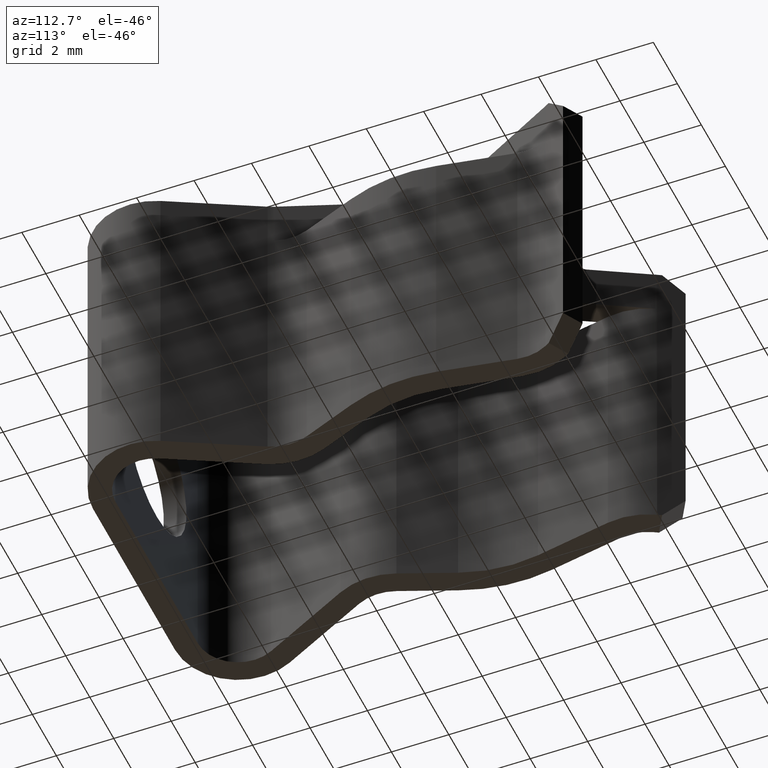
[diagram: clean part render]
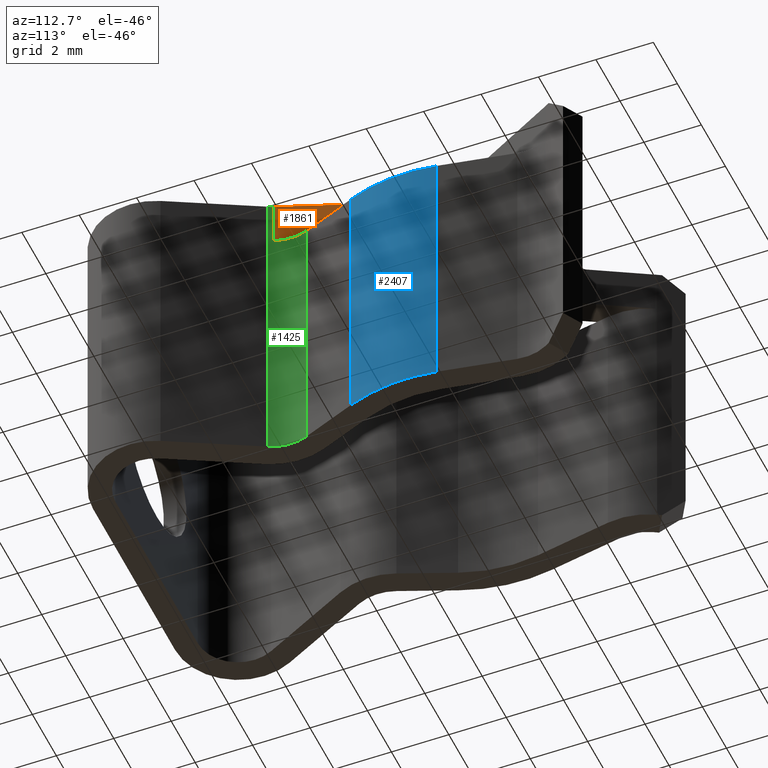
[diagram: same view with three faces highlighted in distinct colors, each labeled with its STEP entity id]
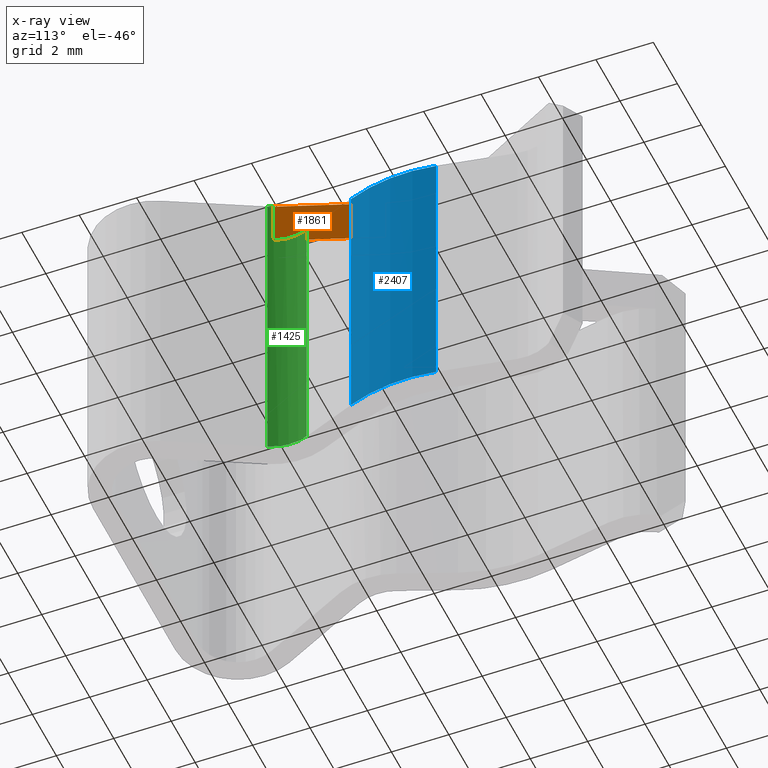
[diagram: x-ray of the same camera — body ghosted, the three highlighted faces saturated]
A machine part, auxiliary view with three faces highlighted in distinct colors.
The next image is the same camera in x-ray (body ghosted, the three faces saturated) — at least one of them is partly hidden behind the body in this view.
Their STEP definitions:

[orange] entity #1861 — the highlighted planar face has unit normal (-0.9391, -0.3436, 0).
#32 = DIRECTION ( 'NONE',  ( -0.0000000000000000000, -0.0000000000000000000, -1.000000000000000000 ) ) ;
#53 = DIRECTION ( 'NONE',  ( -0.3436156955493078800, 0.9391103522867614300, 0.0000000000000000000 ) ) ;
#71 = VECTOR ( 'NONE', #1205, 39.37007874015748900 ) ;
#83 = EDGE_CURVE ( 'NONE', #372, #431, #2225, .T. ) ;
#107 = CARTESIAN_POINT ( 'NONE',  ( 0.1468969374536472100, 0.2220085954848444700, 0.06200000000000000000 ) ) ;
#142 = EDGE_CURVE ( 'NONE', #452, #1069, #1039, .T. ) ;
#147 = ORIENTED_EDGE ( 'NONE', *, *, #2283, .T. ) ;
#170 = DIRECTION ( 'NONE',  ( 0.3436156955493078800, -0.9391103522867614300, 0.0000000000000000000 ) ) ;
#191 = CARTESIAN_POINT ( 'NONE',  ( 0.1468969374536472100, 0.2220085954848444700, 0.0000000000000000000 ) ) ;
#194 = FACE_OUTER_BOUND ( 'NONE', #1862, .T. ) ;
#228 = EDGE_CURVE ( 'NONE', #1069, #372, #920, .T. ) ;
#245 = CARTESIAN_POINT ( 'NONE',  ( 0.1468969374536472100, 0.2220085954848444700, 0.0000000000000000000 ) ) ;
#372 = VERTEX_POINT ( 'NONE', #2254 ) ;
#431 = VERTEX_POINT ( 'NONE', #1316 ) ;
#452 = VERTEX_POINT ( 'NONE', #748 ) ;
#604 = ORIENTED_EDGE ( 'NONE', *, *, #1038, .F. ) ;
#682 = ORIENTED_EDGE ( 'NONE', *, *, #83, .T. ) ;
#748 = CARTESIAN_POINT ( 'NONE',  ( 0.1468969374536472400, 0.2220085954848444200, 0.0000000000000000000 ) ) ;
#774 = ORIENTED_EDGE ( 'NONE', *, *, #142, .T. ) ;
#775 = EDGE_CURVE ( 'NONE', #1165, #2131, #2136, .T. ) ;
#920 = LINE ( 'NONE', #191, #1868 ) ;
#1038 = EDGE_CURVE ( 'NONE', #2131, #431, #2480, .T. ) ;
#1039 = LINE ( 'NONE', #2033, #71 ) ;
#1069 = VERTEX_POINT ( 'NONE', #1378 ) ;
#1110 = VECTOR ( 'NONE', #1141, 39.37007874015748900 ) ;
#1141 = DIRECTION ( 'NONE',  ( -0.3436156955493078800, 0.9391103522867614300, 0.0000000000000000000 ) ) ;
#1143 = DIRECTION ( 'NONE',  ( -0.3436156955493078800, 0.9391103522867614300, 0.0000000000000000000 ) ) ;
#1165 = VERTEX_POINT ( 'NONE', #2049 ) ;
#1205 = DIRECTION ( 'NONE',  ( -0.3436156955493078800, 0.9391103522867614300, 0.0000000000000000000 ) ) ;
#1206 = VECTOR ( 'NONE', #53, 39.37007874015748900 ) ;
#1316 = CARTESIAN_POINT ( 'NONE',  ( 0.09819433680469917500, 0.3551140299720531600, 0.0000000000000000000 ) ) ;
#1378 = CARTESIAN_POINT ( 'NONE',  ( 0.1271620631488821500, 0.2759445041197962600, 0.0000000000000000000 ) ) ;
#1459 = VECTOR ( 'NONE', #32, 39.37007874015748100 ) ;
#1511 = DIRECTION ( 'NONE',  ( -0.9391103522867615400, -0.3436156955493079300, 0.0000000000000000000 ) ) ;
#1525 = CARTESIAN_POINT ( 'NONE',  ( 0.1468969374536472100, 0.2220085954848444700, 0.06200000000000000000 ) ) ;
#1601 = CARTESIAN_POINT ( 'NONE',  ( 0.09819433680469917500, 0.3551140299720531600, 0.06200000000000000000 ) ) ;
#1638 = DIRECTION ( 'NONE',  ( -0.0000000000000000000, -0.0000000000000000000, -1.000000000000000000 ) ) ;
#1724 = VECTOR ( 'NONE', #1638, 39.37007874015748100 ) ;
#1861 = ADVANCED_FACE ( 'NONE', ( #194 ), #1897, .F. ) ;
#1862 = EDGE_LOOP ( 'NONE', ( #774, #1944, #682, #604, #2459, #147 ) ) ;
#1868 = VECTOR ( 'NONE', #1143, 39.37007874015748900 ) ;
#1897 = PLANE ( 'NONE',  #2348 ) ;
#1944 = ORIENTED_EDGE ( 'NONE', *, *, #228, .T. ) ;
#2015 = CARTESIAN_POINT ( 'NONE',  ( 0.1468969374536472400, 0.2220085954848444200, 0.06200000000000000000 ) ) ;
#2033 = CARTESIAN_POINT ( 'NONE',  ( 0.1468969374536472100, 0.2220085954848444700, 0.0000000000000000000 ) ) ;
#2049 = CARTESIAN_POINT ( 'NONE',  ( 0.1468969374536472400, 0.2220085954848444200, 0.06200000000000000000 ) ) ;
#2131 = VERTEX_POINT ( 'NONE', #2155 ) ;
#2136 = LINE ( 'NONE', #107, #1110 ) ;
#2155 = CARTESIAN_POINT ( 'NONE',  ( 0.09819433680469917500, 0.3551140299720531600, 0.06200000000000000000 ) ) ;
#2223 = LINE ( 'NONE', #2015, #1724 ) ;
#2225 = LINE ( 'NONE', #245, #1206 ) ;
#2254 = CARTESIAN_POINT ( 'NONE',  ( 0.1225274097373814400, 0.2886111286493992500, 0.0000000000000000000 ) ) ;
#2283 = EDGE_CURVE ( 'NONE', #1165, #452, #2223, .T. ) ;
#2348 = AXIS2_PLACEMENT_3D ( 'NONE', #1525, #1511, #170 ) ;
#2459 = ORIENTED_EDGE ( 'NONE', *, *, #775, .F. ) ;
#2480 = LINE ( 'NONE', #1601, #1459 ) ;

[blue] entity #2407 — the highlighted cylindrical surface (partial cylindrical patch) has radius 5.6642 mm, axis along (-0, -0, -1).
#52 = VERTEX_POINT ( 'NONE', #1937 ) ;
#143 = ORIENTED_EDGE ( 'NONE', *, *, #910, .T. ) ;
#166 = CIRCLE ( 'NONE', #1546, 0.2229999999999999800 ) ;
#252 = DIRECTION ( 'NONE',  ( 0.0000000000000000000, 0.0000000000000000000, 1.000000000000000000 ) ) ;
#315 = EDGE_CURVE ( 'NONE', #1345, #877, #679, .T. ) ;
#468 = CYLINDRICAL_SURFACE ( 'NONE', #2253, 0.2229999999999999800 ) ;
#527 = CARTESIAN_POINT ( 'NONE',  ( -0.03049999999999958000, 0.4229999999999998800, 0.2124841087502294900 ) ) ;
#593 = EDGE_LOOP ( 'NONE', ( #1310, #606, #1673, #143 ) ) ;
#606 = ORIENTED_EDGE ( 'NONE', *, *, #835, .F. ) ;
#612 = CARTESIAN_POINT ( 'NONE',  ( -0.03049999999999958000, 0.4229999999999998800, 0.0000000000000000000 ) ) ;
#635 = CARTESIAN_POINT ( 'NONE',  ( 0.1889705269593786000, 0.4625181957605972200, 0.0000000000000000000 ) ) ;
#659 = CARTESIAN_POINT ( 'NONE',  ( 0.1889705269593786000, 0.4625181957605972200, -0.3750000000000000600 ) ) ;
#679 = CIRCLE ( 'NONE', #1935, 0.2229999999999999800 ) ;
#753 = VECTOR ( 'NONE', #1313, 39.37007874015748100 ) ;
#760 = VERTEX_POINT ( 'NONE', #1890 ) ;
#816 = DIRECTION ( 'NONE',  ( -0.0000000000000000000, -0.0000000000000000000, -1.000000000000000000 ) ) ;
#835 = EDGE_CURVE ( 'NONE', #52, #1345, #996, .T. ) ;
#877 = VERTEX_POINT ( 'NONE', #635 ) ;
#904 = DIRECTION ( 'NONE',  ( -0.0000000000000000000, -0.0000000000000000000, -1.000000000000000000 ) ) ;
#910 = EDGE_CURVE ( 'NONE', #760, #877, #1309, .T. ) ;
#996 = LINE ( 'NONE', #1558, #1948 ) ;
#1309 = LINE ( 'NONE', #659, #753 ) ;
#1310 = ORIENTED_EDGE ( 'NONE', *, *, #315, .F. ) ;
#1313 = DIRECTION ( 'NONE',  ( 0.0000000000000000000, 0.0000000000000000000, 1.000000000000000000 ) ) ;
#1345 = VERTEX_POINT ( 'NONE', #1954 ) ;
#1546 = AXIS2_PLACEMENT_3D ( 'NONE', #1968, #816, #2164 ) ;
#1558 = CARTESIAN_POINT ( 'NONE',  ( 0.1765419583709403100, 0.3401590229782022200, -0.3750000000000000600 ) ) ;
#1673 = ORIENTED_EDGE ( 'NONE', *, *, #2114, .F. ) ;
#1890 = CARTESIAN_POINT ( 'NONE',  ( 0.1889705269593786000, 0.4625181957605972200, -0.3750000000000000600 ) ) ;
#1935 = AXIS2_PLACEMENT_3D ( 'NONE', #612, #1942, #1936 ) ;
#1936 = DIRECTION ( 'NONE',  ( -1.000000000000000000, 0.0000000000000000000, 0.0000000000000000000 ) ) ;
#1937 = CARTESIAN_POINT ( 'NONE',  ( 0.1765419583709403100, 0.3401590229782022200, -0.3750000000000000600 ) ) ;
#1942 = DIRECTION ( 'NONE',  ( 0.0000000000000000000, 0.0000000000000000000, 1.000000000000000000 ) ) ;
#1948 = VECTOR ( 'NONE', #252, 39.37007874015748100 ) ;
#1954 = CARTESIAN_POINT ( 'NONE',  ( 0.1765419583709403100, 0.3401590229782022700, 0.0000000000000000000 ) ) ;
#1968 = CARTESIAN_POINT ( 'NONE',  ( -0.03049999999999958000, 0.4229999999999998800, -0.3749999999999999400 ) ) ;
#2051 = FACE_OUTER_BOUND ( 'NONE', #593, .T. ) ;
#2114 = EDGE_CURVE ( 'NONE', #760, #52, #166, .T. ) ;
#2164 = DIRECTION ( 'NONE',  ( -1.000000000000000000, 0.0000000000000000000, 0.0000000000000000000 ) ) ;
#2231 = DIRECTION ( 'NONE',  ( -1.000000000000000000, 0.0000000000000000000, 0.0000000000000000000 ) ) ;
#2253 = AXIS2_PLACEMENT_3D ( 'NONE', #527, #904, #2231 ) ;
#2407 = ADVANCED_FACE ( 'NONE', ( #2051 ), #468, .T. ) ;

[green] entity #1425 — the highlighted cylindrical surface (partial cylindrical patch) has radius 1.6256 mm, axis along (-0, -0, -1).
#18 = CIRCLE ( 'NONE', #1338, 0.06399999999999998700 ) ;
#19 = ORIENTED_EDGE ( 'NONE', *, *, #153, .F. ) ;
#86 = CARTESIAN_POINT ( 'NONE',  ( 0.1475798863868159100, 0.2677749889210538400, -0.3750000000000000600 ) ) ;
#153 = EDGE_CURVE ( 'NONE', #933, #1165, #1551, .T. ) ;
#230 = VERTEX_POINT ( 'NONE', #1329 ) ;
#261 = DIRECTION ( 'NONE',  ( -0.0000000000000000000, -0.0000000000000000000, -1.000000000000000000 ) ) ;
#274 = CARTESIAN_POINT ( 'NONE',  ( 0.1499556504071337900, 0.2149837600725582900, 0.06200000000000000000 ) ) ;
#370 = FACE_OUTER_BOUND ( 'NONE', #1086, .T. ) ;
#371 = VECTOR ( 'NONE', #1632, 39.37007874015748100 ) ;
#385 = ORIENTED_EDGE ( 'NONE', *, *, #2283, .F. ) ;
#452 = VERTEX_POINT ( 'NONE', #748 ) ;
#470 = CARTESIAN_POINT ( 'NONE',  ( 0.2070000000000003500, 0.2439999999999998600, 0.1992241663538658100 ) ) ;
#486 = ORIENTED_EDGE ( 'NONE', *, *, #1212, .F. ) ;
#523 = AXIS2_PLACEMENT_3D ( 'NONE', #2320, #2278, #955 ) ;
#569 = ORIENTED_EDGE ( 'NONE', *, *, #972, .F. ) ;
#585 = CIRCLE ( 'NONE', #2477, 0.06399999999999998700 ) ;
#748 = CARTESIAN_POINT ( 'NONE',  ( 0.1468969374536472400, 0.2220085954848444200, 0.0000000000000000000 ) ) ;
#752 = DIRECTION ( 'NONE',  ( 0.0000000000000000000, 0.0000000000000000000, 1.000000000000000000 ) ) ;
#824 = CYLINDRICAL_SURFACE ( 'NONE', #1424, 0.06399999999999998700 ) ;
#827 = DIRECTION ( 'NONE',  ( -1.000000000000000000, 0.0000000000000000000, 0.0000000000000000000 ) ) ;
#831 = DIRECTION ( 'NONE',  ( -1.000000000000000000, 0.0000000000000000000, 0.0000000000000000000 ) ) ;
#933 = VERTEX_POINT ( 'NONE', #274 ) ;
#955 = DIRECTION ( 'NONE',  ( -1.000000000000000000, 0.0000000000000000000, 0.0000000000000000000 ) ) ;
#972 = EDGE_CURVE ( 'NONE', #2148, #933, #2212, .T. ) ;
#998 = CARTESIAN_POINT ( 'NONE',  ( 0.1475798863868159100, 0.2677749889210538400, 0.0000000000000000000 ) ) ;
#1014 = CARTESIAN_POINT ( 'NONE',  ( 0.1499556504071341300, 0.2149837600725582100, -0.3750000000000000600 ) ) ;
#1019 = DIRECTION ( 'NONE',  ( 0.0000000000000000000, 0.0000000000000000000, 1.000000000000000000 ) ) ;
#1086 = EDGE_LOOP ( 'NONE', ( #1523, #385, #19, #569, #486, #2481 ) ) ;
#1107 = CARTESIAN_POINT ( 'NONE',  ( 0.1499556504071341300, 0.2149837600725582100, -0.3750000000000000600 ) ) ;
#1147 = CARTESIAN_POINT ( 'NONE',  ( 0.2070000000000003500, 0.2439999999999998600, 0.0000000000000000000 ) ) ;
#1165 = VERTEX_POINT ( 'NONE', #2049 ) ;
#1212 = EDGE_CURVE ( 'NONE', #230, #2148, #18, .T. ) ;
#1329 = CARTESIAN_POINT ( 'NONE',  ( 0.1475798863868159100, 0.2677749889210538400, -0.3750000000000000600 ) ) ;
#1334 = DIRECTION ( 'NONE',  ( -1.000000000000000000, 0.0000000000000000000, 0.0000000000000000000 ) ) ;
#1338 = AXIS2_PLACEMENT_3D ( 'NONE', #1767, #1019, #827 ) ;
#1385 = LINE ( 'NONE', #86, #371 ) ;
#1424 = AXIS2_PLACEMENT_3D ( 'NONE', #470, #261, #831 ) ;
#1425 = ADVANCED_FACE ( 'NONE', ( #370 ), #824, .F. ) ;
#1523 = ORIENTED_EDGE ( 'NONE', *, *, #1927, .F. ) ;
#1551 = CIRCLE ( 'NONE', #523, 0.06400000000000070900 ) ;
#1632 = DIRECTION ( 'NONE',  ( 0.0000000000000000000, 0.0000000000000000000, 1.000000000000000000 ) ) ;
#1638 = DIRECTION ( 'NONE',  ( -0.0000000000000000000, -0.0000000000000000000, -1.000000000000000000 ) ) ;
#1724 = VECTOR ( 'NONE', #1638, 39.37007874015748100 ) ;
#1767 = CARTESIAN_POINT ( 'NONE',  ( 0.2070000000000003500, 0.2439999999999998600, -0.3749999999999999400 ) ) ;
#1927 = EDGE_CURVE ( 'NONE', #452, #2070, #585, .T. ) ;
#2015 = CARTESIAN_POINT ( 'NONE',  ( 0.1468969374536472400, 0.2220085954848444200, 0.06200000000000000000 ) ) ;
#2049 = CARTESIAN_POINT ( 'NONE',  ( 0.1468969374536472400, 0.2220085954848444200, 0.06200000000000000000 ) ) ;
#2070 = VERTEX_POINT ( 'NONE', #998 ) ;
#2103 = VECTOR ( 'NONE', #752, 39.37007874015748100 ) ;
#2148 = VERTEX_POINT ( 'NONE', #1014 ) ;
#2212 = LINE ( 'NONE', #1107, #2103 ) ;
#2223 = LINE ( 'NONE', #2015, #1724 ) ;
#2240 = EDGE_CURVE ( 'NONE', #230, #2070, #1385, .T. ) ;
#2278 = DIRECTION ( 'NONE',  ( -0.0000000000000000000, -0.0000000000000000000, -1.000000000000000000 ) ) ;
#2283 = EDGE_CURVE ( 'NONE', #1165, #452, #2223, .T. ) ;
#2320 = CARTESIAN_POINT ( 'NONE',  ( 0.2070000000000006300, 0.2440000000000003800, 0.06200000000000000000 ) ) ;
#2477 = AXIS2_PLACEMENT_3D ( 'NONE', #1147, #2479, #1334 ) ;
#2479 = DIRECTION ( 'NONE',  ( -0.0000000000000000000, -0.0000000000000000000, -1.000000000000000000 ) ) ;
#2481 = ORIENTED_EDGE ( 'NONE', *, *, #2240, .T. ) ;